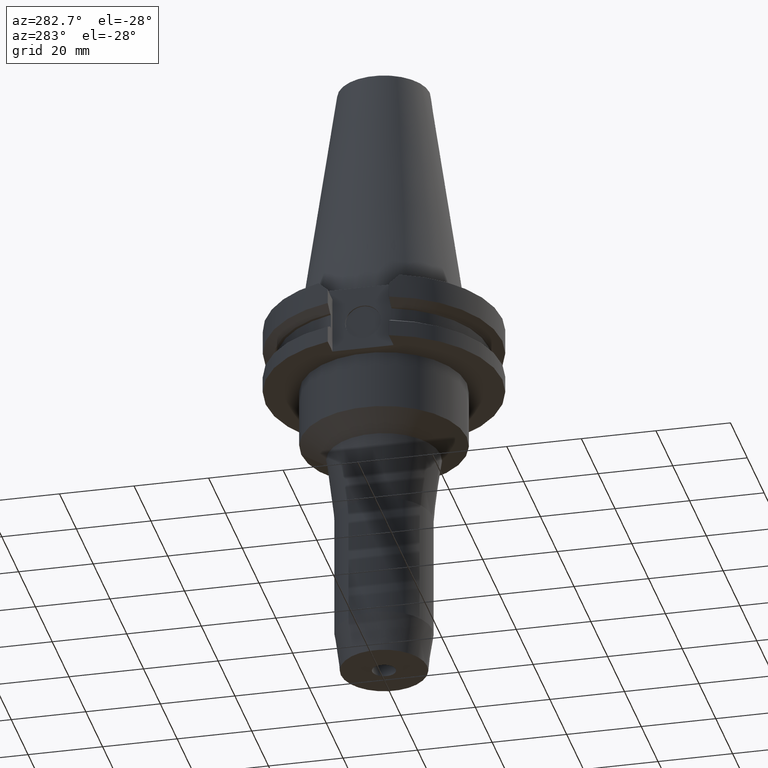
[diagram: clean part render]
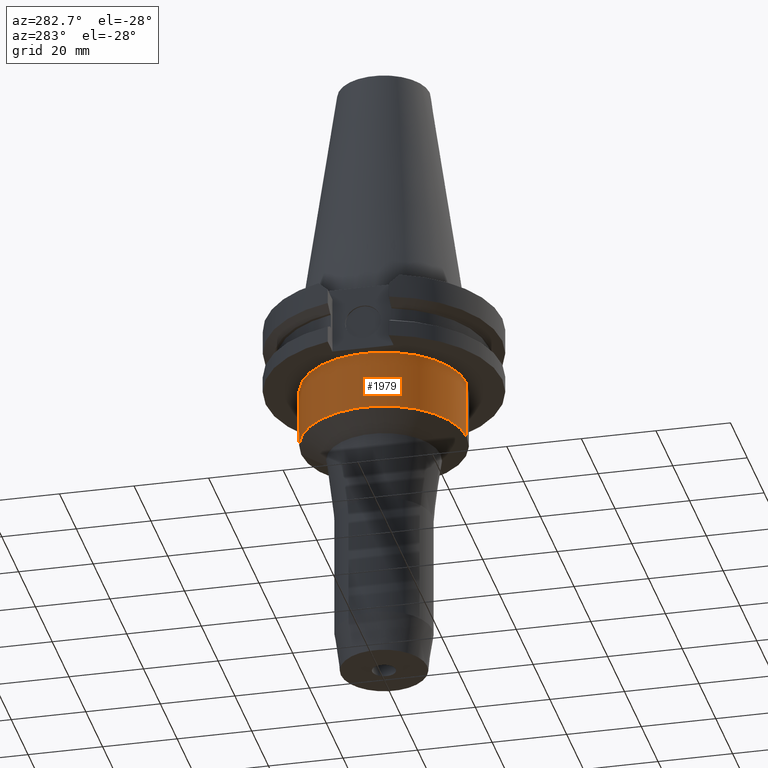
[diagram: same view with one face highlighted and labeled with its STEP entity id]
A machine part, auxiliary view. The second image highlights one B-rep face of the part: STEP entity #1979.
In plain terms, the highlighted cylindrical surface (partial cylindrical patch) has radius 22.225 mm, axis along (0, 0, -1).
Its self-contained STEP definition (entity closure, byte-faithful):
#468=CARTESIAN_POINT('',(0.E0,0.E0,-3.5E1));
#469=DIRECTION('',(0.E0,0.E0,1.E0));
#470=DIRECTION('',(0.E0,1.E0,0.E0));
#471=AXIS2_PLACEMENT_3D('',#468,#469,#470);
#506=DIRECTION('',(0.E0,2.472421431642E-14,-1.E0));
#507=VECTOR('',#506,1.595E1);
#508=CARTESIAN_POINT('',(0.E0,2.2225E1,-1.905E1));
#509=LINE('',#508,#507);
#513=DIRECTION('',(0.E0,-2.516969565545E-14,-1.E0));
#514=VECTOR('',#513,1.595E1);
#515=CARTESIAN_POINT('',(0.E0,-2.2225E1,-1.905E1));
#516=LINE('',#515,#514);
#573=CARTESIAN_POINT('',(0.E0,2.164471368983E-14,-1.905E1));
#574=DIRECTION('',(0.E0,0.E0,-1.E0));
#575=DIRECTION('',(0.E0,-1.E0,0.E0));
#576=AXIS2_PLACEMENT_3D('',#573,#574,#575);
#1364=CARTESIAN_POINT('',(0.E0,2.2225E1,-3.5E1));
#1365=VERTEX_POINT('',#1364);
#1366=CARTESIAN_POINT('',(0.E0,-2.2225E1,-3.5E1));
#1367=VERTEX_POINT('',#1366);
#1368=CARTESIAN_POINT('',(0.E0,2.2225E1,-1.905E1));
#1369=VERTEX_POINT('',#1368);
#1370=CARTESIAN_POINT('',(0.E0,-2.2225E1,-1.905E1));
#1371=VERTEX_POINT('',#1370);
#1967=CARTESIAN_POINT('',(0.E0,2.164471368983E-14,7.67425E1));
#1968=DIRECTION('',(0.E0,0.E0,-1.E0));
#1969=DIRECTION('',(0.E0,-1.E0,0.E0));
#1970=AXIS2_PLACEMENT_3D('',#1967,#1968,#1969);
#1971=CYLINDRICAL_SURFACE('',#1970,2.2225E1);
#1972=ORIENTED_EDGE('',*,*,#1957,.F.);
#1974=ORIENTED_EDGE('',*,*,#1973,.F.);
#1975=ORIENTED_EDGE('',*,*,#1960,.T.);
#1976=ORIENTED_EDGE('',*,*,#1931,.F.);
#1977=EDGE_LOOP('',(#1972,#1974,#1975,#1976));
#1978=FACE_OUTER_BOUND('',#1977,.F.);
#472=CIRCLE('',#471,2.2225E1);
#577=CIRCLE('',#576,2.2225E1);
#1931=EDGE_CURVE('',#1365,#1367,#472,.T.);
#1957=EDGE_CURVE('',#1369,#1365,#509,.T.);
#1960=EDGE_CURVE('',#1371,#1367,#516,.T.);
#1973=EDGE_CURVE('',#1371,#1369,#577,.T.);
#1979=ADVANCED_FACE('',(#1978),#1971,.T.);